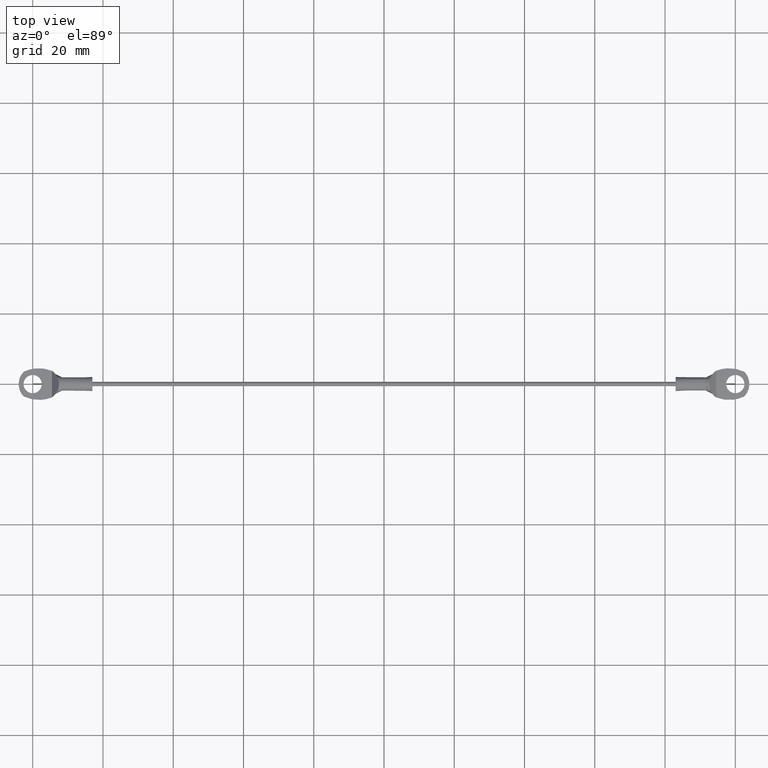
[diagram: clean part render]
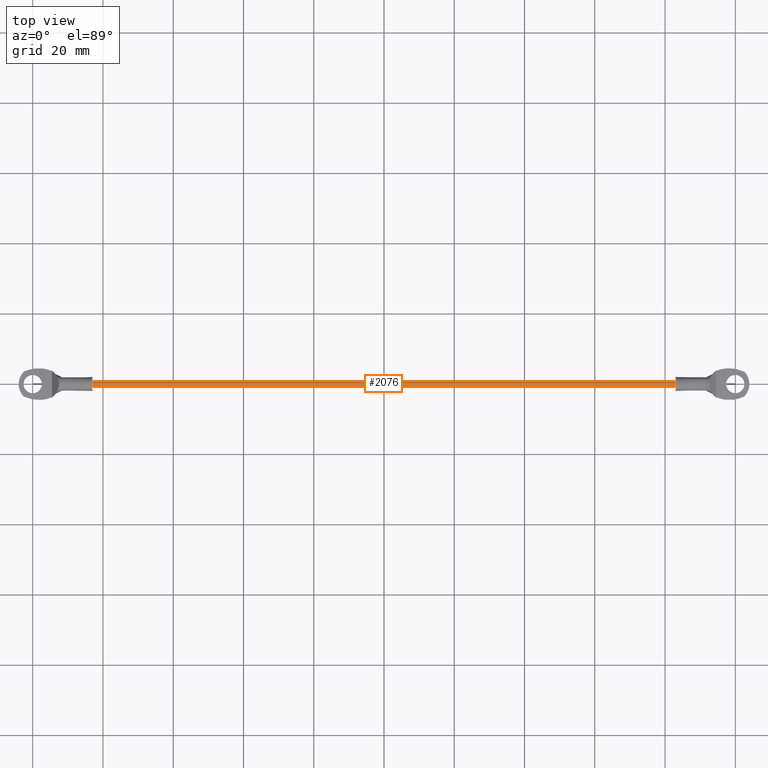
[diagram: same view with one face highlighted and labeled with its STEP entity id]
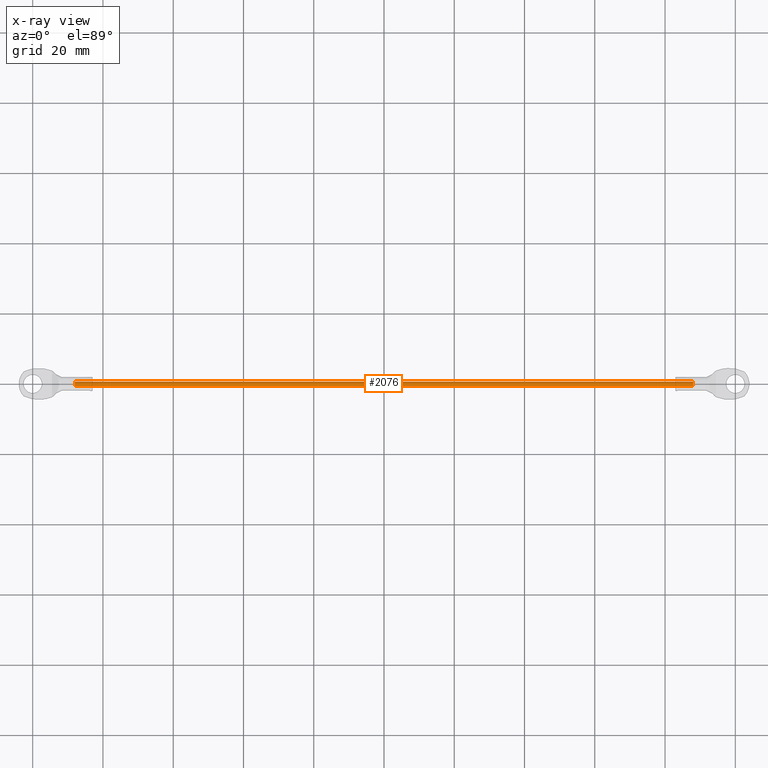
[diagram: x-ray of the same camera — body ghosted, the highlighted face saturated]
A machine part, top view. The second image highlights one B-rep face of the part: STEP entity #2076.
The next image is the same camera in x-ray: the body ghosted, the highlighted face saturated — about 0% of this face is hidden behind the body in this view.
In plain terms, the highlighted face is a freeform B-spline surface patch.
Its self-contained STEP definition (entity closure, byte-faithful):
#1913=CARTESIAN_POINT('',(-11.999999999999989,0.595805715589397,2.070820542718947));
#1914=VERTEX_POINT('',#1913);
#1932=CARTESIAN_POINT('',(-12.0,-0.598880879052782,1.963370876273560));
#1933=VERTEX_POINT('',#1932);
#1947=CARTESIAN_POINT('',(-188.0,-0.598880879052782,1.963370876273560));
#1948=VERTEX_POINT('',#1947);
#1949=CARTESIAN_POINT('',(-12.0,-0.598880879052782,1.963370876273560));
#1950=CARTESIAN_POINT('',(-188.0,-0.598880879052782,1.963370876273560));
#1951=QUASI_UNIFORM_CURVE('',1,(#1949,#1950),.UNSPECIFIED.,.F.,.U.);
#1952=EDGE_CURVE('',#1933,#1948,#1951,.T.);
#1969=CARTESIAN_POINT('',(-188.0,0.595805715589397,2.070820542718950));
#1970=VERTEX_POINT('',#1969);
#1986=CARTESIAN_POINT('',(-11.999999999999989,0.595805715589397,2.070820542718947));
#1987=CARTESIAN_POINT('',(-188.0,0.595805715589397,2.070820542718950));
#1988=QUASI_UNIFORM_CURVE('',1,(#1986,#1987),.UNSPECIFIED.,.F.,.U.);
#1989=EDGE_CURVE('',#1914,#1970,#1988,.T.);
#1994=CARTESIAN_POINT('',(-7.599999999999993,-0.598880879053120,1.963370876279086));
#1995=CARTESIAN_POINT('',(-7.599999999999993,-0.635510002774034,2.562251755332205));
#1996=CARTESIAN_POINT('',(-7.599999999999993,-0.036629123720914,2.598880879053120));
#1997=CARTESIAN_POINT('',(-7.599999999999994,0.528926094503700,2.633471718039516));
#1998=CARTESIAN_POINT('',(-7.599999999999993,0.595805715818200,2.070820540794055));
#1999=CARTESIAN_POINT('',(-192.510000000000100,-0.598880879053120,1.963370876279086));
#2000=CARTESIAN_POINT('',(-192.510000000000050,-0.635510002774034,2.562251755332205));
#2001=CARTESIAN_POINT('',(-192.510000000000100,-0.036629123720914,2.598880879053120));
#2002=CARTESIAN_POINT('',(-192.510000000000020,0.528926094503700,2.633471718039516));
#2003=CARTESIAN_POINT('',(-192.510000000000050,0.595805715818200,2.070820540794055));
#2011=(BOUNDED_SURFACE()B_SPLINE_SURFACE(2,1,((#1994,#1999),(#1995,#2000),(#1996,#2001),(#1997,#2002),(#1998,#2003)),.UNSPECIFIED.,.F.,.F.,.U.)B_SPLINE_SURFACE_WITH_KNOTS((3,2,3),(2,2),(0.0,1.570796326794897,3.078760800517997),(0.0,184.910000000000110),.UNSPECIFIED.)GEOMETRIC_REPRESENTATION_ITEM()RATIONAL_B_SPLINE_SURFACE(((1.0,1.0),(0.707106781186548,0.707106781186548),(1.0,1.0),(0.718822509939086,0.718822509939086),(0.977505800795127,0.977505800795127)))REPRESENTATION_ITEM('')SURFACE());
#2012=CARTESIAN_POINT('',(-12.0,0.0,2.600000000000000));
#2013=VERTEX_POINT('',#2012);
#2014=CARTESIAN_POINT('',(-12.0,0.0,2.600000000000000));
#2015=CARTESIAN_POINT('',(-11.999999999999998,0.532904712103230,2.600000000000001));
#2016=CARTESIAN_POINT('',(-11.999999999999991,0.595805715589397,2.070820542718947));
#2024=(BOUNDED_CURVE()B_SPLINE_CURVE(2,(#2014,#2015,#2016),.UNSPECIFIED.,.F.,.U.)B_SPLINE_CURVE_WITH_KNOTS((3,3),(0.0,0.229562472423634),.UNSPECIFIED.)CURVE()GEOMETRIC_REPRESENTATION_ITEM()RATIONAL_B_SPLINE_CURVE((1.0,0.731050834132270,0.956026752047501))REPRESENTATION_ITEM(''));
#2025=EDGE_CURVE('',#2013,#1914,#2024,.T.);
#2026=ORIENTED_EDGE('',*,*,#2025,.T.);
#2027=ORIENTED_EDGE('',*,*,#1989,.T.);
#2028=CARTESIAN_POINT('',(-188.0,0.0,2.600000000000000));
#2029=VERTEX_POINT('',#2028);
#2030=CARTESIAN_POINT('',(-188.0,0.0,2.600000000000000));
#2031=CARTESIAN_POINT('',(-188.000000000000060,0.532904712103225,2.600000000000000));
#2032=CARTESIAN_POINT('',(-188.000000000000060,0.595805715589397,2.070820542718950));
#2040=(BOUNDED_CURVE()B_SPLINE_CURVE(2,(#2030,#2031,#2032),.UNSPECIFIED.,.F.,.U.)B_SPLINE_CURVE_WITH_KNOTS((3,3),(0.0,0.229562472423632),.UNSPECIFIED.)CURVE()GEOMETRIC_REPRESENTATION_ITEM()RATIONAL_B_SPLINE_CURVE((1.0,0.731050834132272,0.956026752047498))REPRESENTATION_ITEM(''));
#2041=EDGE_CURVE('',#2029,#1970,#2040,.T.);
#2042=ORIENTED_EDGE('',*,*,#2041,.F.);
#2043=CARTESIAN_POINT('',(-187.999999999999970,-0.598880879052782,1.963370876273560));
#2044=CARTESIAN_POINT('',(-188.0,-0.600000000000000,1.981668342015306));
#2045=CARTESIAN_POINT('',(-188.0,-0.600000000000000,2.0));
#2046=CARTESIAN_POINT('',(-188.000000000000140,-0.600000000000000,2.600000000000001));
#2047=CARTESIAN_POINT('',(-188.0,0.0,2.600000000000000));
#2055=(BOUNDED_CURVE()B_SPLINE_CURVE(2,(#2043,#2044,#2045,#2046,#2047),.UNSPECIFIED.,.F.,.U.)B_SPLINE_CURVE_WITH_KNOTS((3,2,3),(0.739332962238784,0.750000000000000,1.0),.UNSPECIFIED.)CURVE()GEOMETRIC_REPRESENTATION_ITEM()RATIONAL_B_SPLINE_CURVE((0.976072041666378,0.987502787899652,1.0,0.707106781186547,1.0))REPRESENTATION_ITEM(''));
#2056=EDGE_CURVE('',#1948,#2029,#2055,.T.);
#2057=ORIENTED_EDGE('',*,*,#2056,.F.);
#2058=ORIENTED_EDGE('',*,*,#1952,.F.);
#2059=CARTESIAN_POINT('',(-12.000000000000007,-0.598880879052782,1.963370876273560));
#2060=CARTESIAN_POINT('',(-12.000000000000002,-0.600000000000000,1.981668342015306));
#2061=CARTESIAN_POINT('',(-12.0,-0.600000000000000,2.0));
#2062=CARTESIAN_POINT('',(-12.0,-0.600000000000000,2.600000000000001));
#2063=CARTESIAN_POINT('',(-12.0,0.0,2.600000000000000));
#2071=(BOUNDED_CURVE()B_SPLINE_CURVE(2,(#2059,#2060,#2061,#2062,#2063),.UNSPECIFIED.,.F.,.U.)B_SPLINE_CURVE_WITH_KNOTS((3,2,3),(0.739332962238784,0.750000000000000,1.0),.UNSPECIFIED.)CURVE()GEOMETRIC_REPRESENTATION_ITEM()RATIONAL_B_SPLINE_CURVE((0.976072041666378,0.987502787899652,1.0,0.707106781186547,1.0))REPRESENTATION_ITEM(''));
#2072=EDGE_CURVE('',#1933,#2013,#2071,.T.);
#2073=ORIENTED_EDGE('',*,*,#2072,.T.);
#2074=EDGE_LOOP('',(#2026,#2027,#2042,#2057,#2058,#2073));
#2075=FACE_OUTER_BOUND('',#2074,.T.);
#2076=ADVANCED_FACE('',(#2075),#2011,.T.);